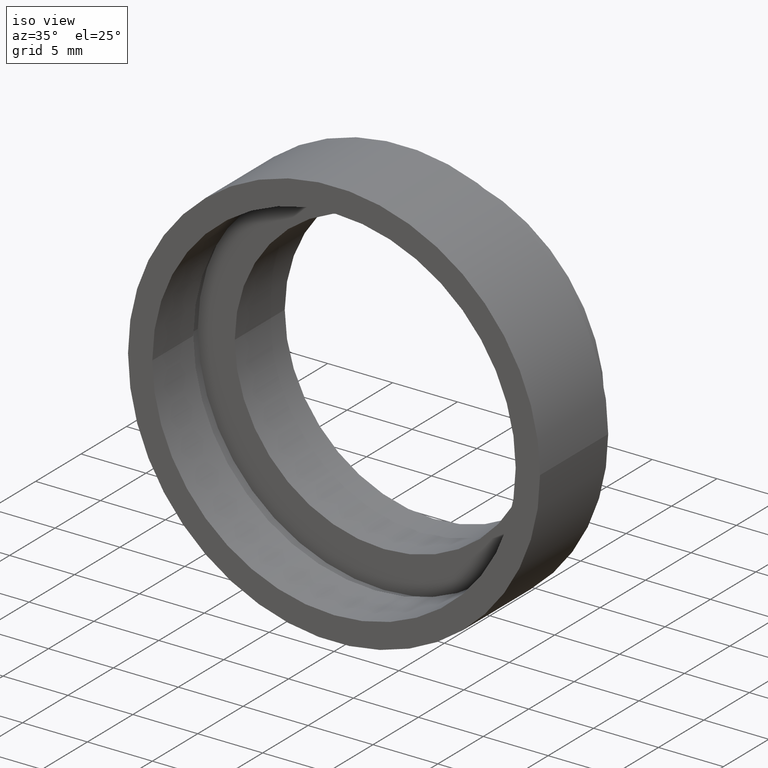
[diagram: clean part render]
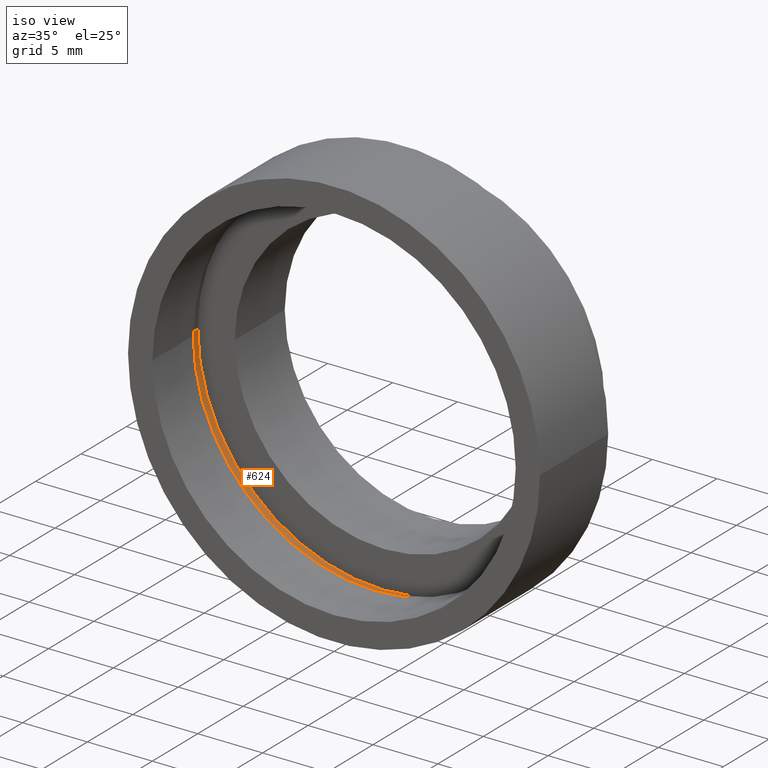
[diagram: same view with one face highlighted and labeled with its STEP entity id]
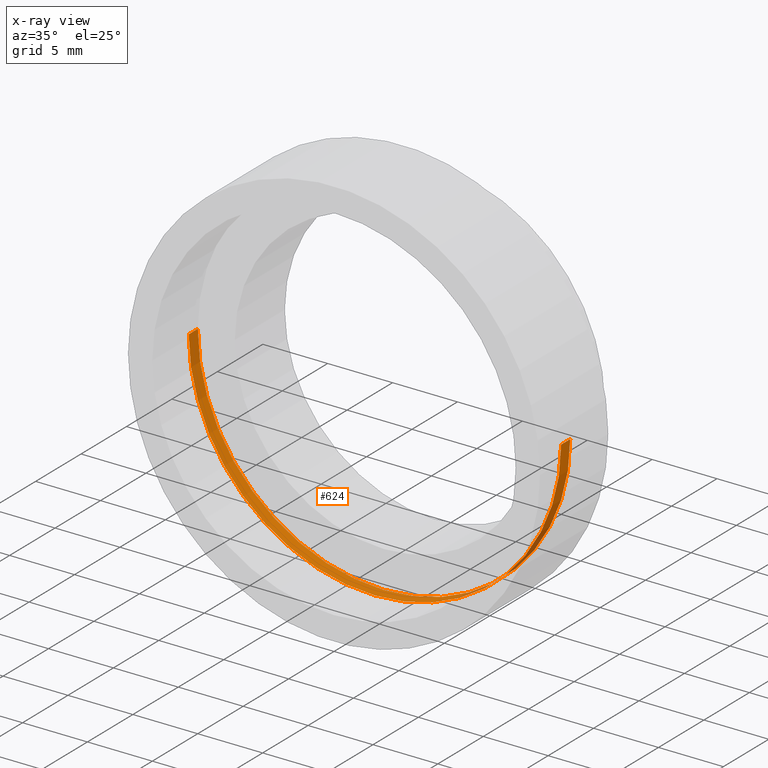
[diagram: x-ray of the same camera — body ghosted, the highlighted face saturated]
A machine part, iso view. The second image highlights one B-rep face of the part: STEP entity #624.
The next image is the same camera in x-ray: the body ghosted, the highlighted face saturated — about 5% of this face is hidden behind the body in this view.
In plain terms, the highlighted cylindrical surface (partial cylindrical patch) has radius 14.35 mm, axis along (-0, 1, -0).
Its self-contained STEP definition (entity closure, byte-faithful):
#25 = VERTEX_POINT ( 'NONE', #405 ) ;
#27 = CARTESIAN_POINT ( 'NONE',  ( 14.35000000000000000, 5.499999999999998200, 1.757368156776451600E-015 ) ) ;
#33 = EDGE_CURVE ( 'NONE', #25, #195, #305, .T. ) ;
#37 = AXIS2_PLACEMENT_3D ( 'NONE', #550, #413, #256 ) ;
#42 = CIRCLE ( 'NONE', #365, 14.34999999999999800 ) ;
#52 = CARTESIAN_POINT ( 'NONE',  ( -14.34999999999999800, 16.88601823708207300, 0.0000000000000000000 ) ) ;
#61 = CARTESIAN_POINT ( 'NONE',  ( 0.0000000000000000000, 16.88601823708207700, 0.0000000000000000000 ) ) ;
#63 = EDGE_CURVE ( 'NONE', #472, #25, #42, .T. ) ;
#67 = VERTEX_POINT ( 'NONE', #27 ) ;
#76 = DIRECTION ( 'NONE',  ( -1.000000000000000000, -1.208866533781747400E-016, 0.0000000000000000000 ) ) ;
#82 = FACE_OUTER_BOUND ( 'NONE', #582, .T. ) ;
#130 = DIRECTION ( 'NONE',  ( -1.224646799147351000E-016, 1.000000000000000000, -0.0000000000000000000 ) ) ;
#150 = DIRECTION ( 'NONE',  ( -1.224646799147351000E-016, 1.000000000000000000, -0.0000000000000000000 ) ) ;
#151 = CARTESIAN_POINT ( 'NONE',  ( -14.34999999999999600, 5.499999999999994700, 0.0000000000000000000 ) ) ;
#162 = EDGE_CURVE ( 'NONE', #472, #67, #588, .T. ) ;
#195 = VERTEX_POINT ( 'NONE', #151 ) ;
#207 = ORIENTED_EDGE ( 'NONE', *, *, #33, .F. ) ;
#230 = VECTOR ( 'NONE', #296, 1000.000000000000000 ) ;
#243 = AXIS2_PLACEMENT_3D ( 'NONE', #61, #409, #310 ) ;
#256 = DIRECTION ( 'NONE',  ( -1.000000000000000000, -1.208866533781747400E-016, 0.0000000000000000000 ) ) ;
#296 = DIRECTION ( 'NONE',  ( -1.224646799147351000E-016, 1.000000000000000000, -0.0000000000000000000 ) ) ;
#301 = CARTESIAN_POINT ( 'NONE',  ( 14.35000000000000000, 4.499999999999999100, 1.757368156776451600E-015 ) ) ;
#305 = LINE ( 'NONE', #52, #230 ) ;
#310 = DIRECTION ( 'NONE',  ( -1.000000000000000000, -2.417733067563494800E-016, 0.0000000000000000000 ) ) ;
#322 = ORIENTED_EDGE ( 'NONE', *, *, #162, .T. ) ;
#337 = CYLINDRICAL_SURFACE ( 'NONE', #243, 14.34999999999999800 ) ;
#349 = CIRCLE ( 'NONE', #37, 14.34999999999999800 ) ;
#365 = AXIS2_PLACEMENT_3D ( 'NONE', #375, #130, #76 ) ;
#375 = CARTESIAN_POINT ( 'NONE',  ( 1.516849758822328300E-015, 4.499999999999997300, 0.0000000000000000000 ) ) ;
#401 = CARTESIAN_POINT ( 'NONE',  ( 14.34999999999999800, 16.88601823708208000, 1.757368156776451600E-015 ) ) ;
#405 = CARTESIAN_POINT ( 'NONE',  ( -14.34999999999999600, 4.499999999999995600, 0.0000000000000000000 ) ) ;
#409 = DIRECTION ( 'NONE',  ( -1.224646799147351000E-016, 1.000000000000000000, -0.0000000000000000000 ) ) ;
#413 = DIRECTION ( 'NONE',  ( -1.224646799147351000E-016, 1.000000000000000000, -0.0000000000000000000 ) ) ;
#439 = EDGE_CURVE ( 'NONE', #67, #195, #349, .T. ) ;
#463 = ORIENTED_EDGE ( 'NONE', *, *, #63, .F. ) ;
#472 = VERTEX_POINT ( 'NONE', #301 ) ;
#480 = ORIENTED_EDGE ( 'NONE', *, *, #439, .T. ) ;
#550 = CARTESIAN_POINT ( 'NONE',  ( 1.394385078907593200E-015, 5.499999999999996400, 0.0000000000000000000 ) ) ;
#580 = VECTOR ( 'NONE', #150, 1000.000000000000000 ) ;
#582 = EDGE_LOOP ( 'NONE', ( #463, #322, #480, #207 ) ) ;
#588 = LINE ( 'NONE', #401, #580 ) ;
#624 = ADVANCED_FACE ( 'NONE', ( #82 ), #337, .F. ) ;